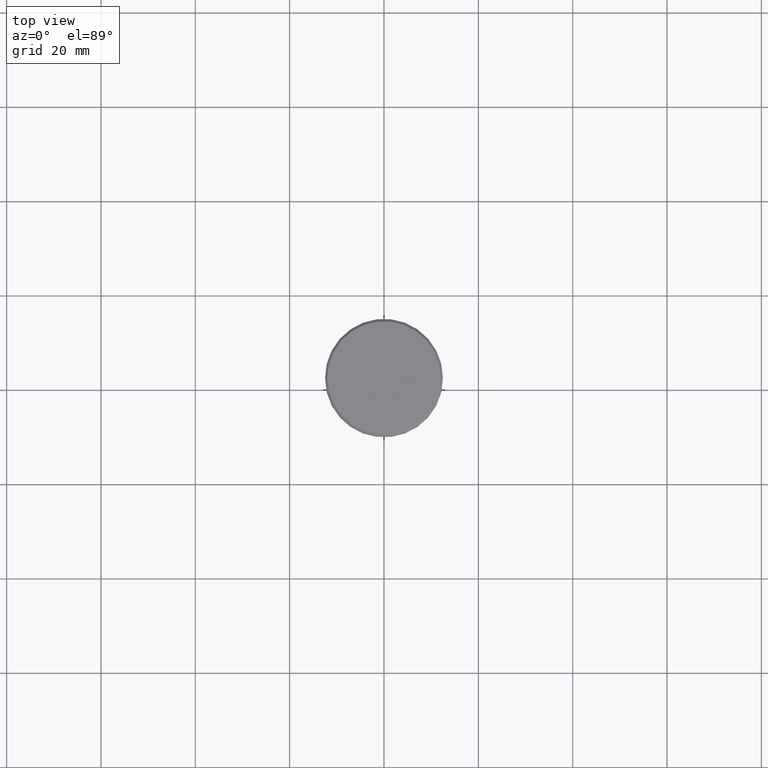
[diagram: clean part render]
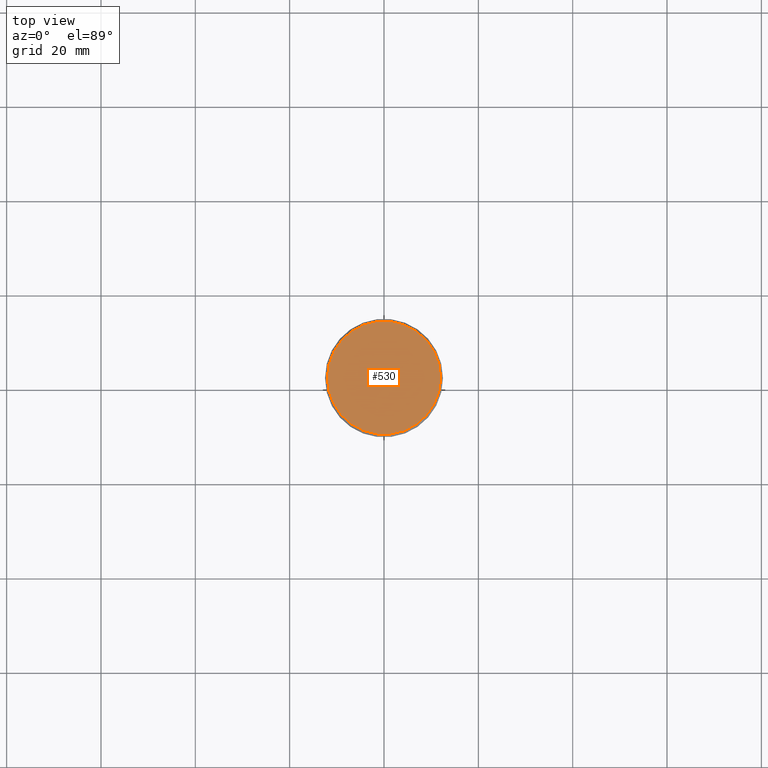
[diagram: same view with one face highlighted and labeled with its STEP entity id]
A machine part, top view. The second image highlights one B-rep face of the part: STEP entity #530.
In plain terms, the highlighted planar face has unit normal (0, -0, 1).
Its self-contained STEP definition (entity closure, byte-faithful):
#16 = DIRECTION ( 'NONE',  ( 1.000000000000000000, 0.000000000000000000, 0.000000000000000000 ) ) ;
#39 = FACE_OUTER_BOUND ( 'NONE', #695, .T. ) ;
#211 = CIRCLE ( 'NONE', #672, 11.99999999999999645 ) ;
#220 = DIRECTION ( 'NONE',  ( 0.000000000000000000, -0.000000000000000000, 1.000000000000000000 ) ) ;
#243 = ORIENTED_EDGE ( 'NONE', *, *, #445, .T. ) ;
#328 = AXIS2_PLACEMENT_3D ( 'NONE', #1106, #746, #16 ) ;
#331 = DIRECTION ( 'NONE',  ( -0.000000000000000000, -0.000000000000000000, 1.000000000000000000 ) ) ;
#445 = EDGE_CURVE ( 'NONE', #780, #466, #211, .T. ) ;
#466 = VERTEX_POINT ( 'NONE', #908 ) ;
#481 = PLANE ( 'NONE',  #570 ) ;
#530 = ADVANCED_FACE ( 'NONE', ( #39 ), #481, .T. ) ;
#570 = AXIS2_PLACEMENT_3D ( 'NONE', #588, #220, #666 ) ;
#588 = CARTESIAN_POINT ( 'NONE',  ( 0.000000000000000000, 0.000000000000000000, 0.000000000000000000 ) ) ;
#605 = ORIENTED_EDGE ( 'NONE', *, *, #863, .T. ) ;
#666 = DIRECTION ( 'NONE',  ( 1.000000000000000000, 0.000000000000000000, 0.000000000000000000 ) ) ;
#672 = AXIS2_PLACEMENT_3D ( 'NONE', #1163, #331, #988 ) ;
#695 = EDGE_LOOP ( 'NONE', ( #605, #243 ) ) ;
#746 = DIRECTION ( 'NONE',  ( -0.000000000000000000, -0.000000000000000000, 1.000000000000000000 ) ) ;
#780 = VERTEX_POINT ( 'NONE', #1181 ) ;
#863 = EDGE_CURVE ( 'NONE', #466, #780, #1159, .T. ) ;
#908 = CARTESIAN_POINT ( 'NONE',  ( -11.99999999999999645, 0.000000000000000000, 0.000000000000000000 ) ) ;
#988 = DIRECTION ( 'NONE',  ( 1.000000000000000000, 0.000000000000000000, 0.000000000000000000 ) ) ;
#1106 = CARTESIAN_POINT ( 'NONE',  ( 0.000000000000000000, 0.000000000000000000, 0.000000000000000000 ) ) ;
#1159 = CIRCLE ( 'NONE', #328, 11.99999999999999645 ) ;
#1163 = CARTESIAN_POINT ( 'NONE',  ( 0.000000000000000000, 0.000000000000000000, 0.000000000000000000 ) ) ;
#1181 = CARTESIAN_POINT ( 'NONE',  ( 11.99999999999999645, 1.500192328955507537E-15, 0.000000000000000000 ) ) ;